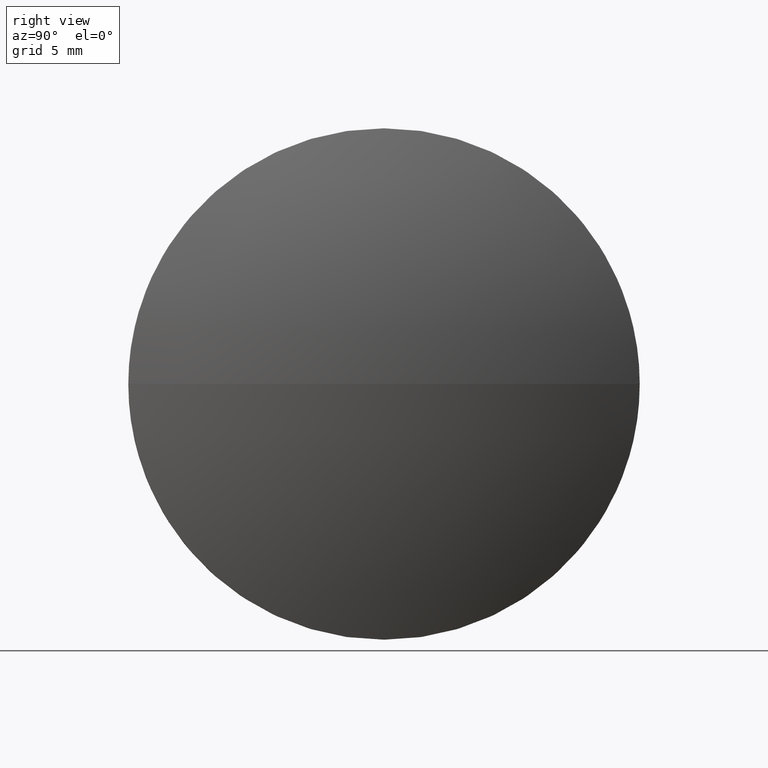
[diagram: clean part render]
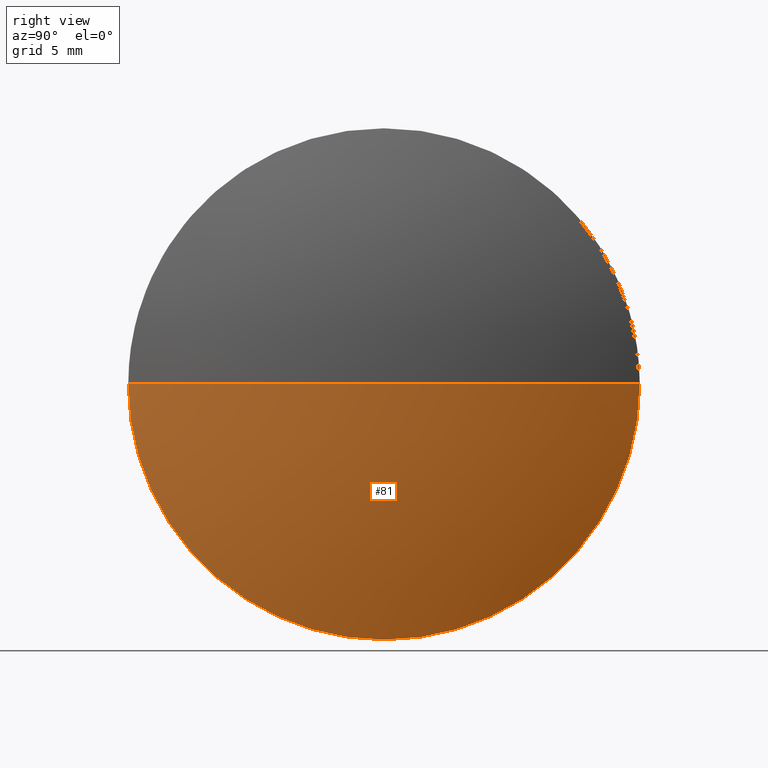
[diagram: same view with one face highlighted and labeled with its STEP entity id]
A machine part, right view. The second image highlights one B-rep face of the part: STEP entity #81.
In plain terms, the highlighted spherical surface has radius 34.506 mm.
Its self-contained STEP definition (entity closure, byte-faithful):
#8 = ORIENTED_EDGE ( 'NONE', *, *, #162, .F. ) ;
#9 = AXIS2_PLACEMENT_3D ( 'NONE', #106, #129, #49 ) ;
#17 = EDGE_CURVE ( 'NONE', #52, #82, #144, .T. ) ;
#21 = DIRECTION ( 'NONE',  ( -1.000000000000000000, -0.0000000000000000000, -0.0000000000000000000 ) ) ;
#22 = ORIENTED_EDGE ( 'NONE', *, *, #154, .T. ) ;
#24 = EDGE_LOOP ( 'NONE', ( #165, #22, #8, #109 ) ) ;
#27 = FACE_OUTER_BOUND ( 'NONE', #24, .T. ) ;
#32 = CARTESIAN_POINT ( 'NONE',  ( 118.7594658620225400, 52.53355492641217900, -1.555301434917140800E-015 ) ) ;
#48 = CARTESIAN_POINT ( 'NONE',  ( 118.7594658620225400, 65.23355492641219700, 0.0000000000000000000 ) ) ;
#49 = DIRECTION ( 'NONE',  ( 0.0000000000000000000, 1.000000000000000000, 1.224646799147353200E-016 ) ) ;
#52 = VERTEX_POINT ( 'NONE', #75 ) ;
#59 = DIRECTION ( 'NONE',  ( 0.0000000000000000000, 1.000000000000000000, 0.0000000000000000000 ) ) ;
#64 = DIRECTION ( 'NONE',  ( -0.0000000000000000000, 0.0000000000000000000, 1.000000000000000000 ) ) ;
#75 = CARTESIAN_POINT ( 'NONE',  ( 118.7594658620225400, 77.93355492641221400, 0.0000000000000000000 ) ) ;
#76 = DIRECTION ( 'NONE',  ( -1.000000000000000000, -0.0000000000000000000, -0.0000000000000000000 ) ) ;
#81 = ADVANCED_FACE ( 'NONE', ( #27 ), #139, .T. ) ;
#82 = VERTEX_POINT ( 'NONE', #89 ) ;
#84 = AXIS2_PLACEMENT_3D ( 'NONE', #171, #88, #59 ) ;
#88 = DIRECTION ( 'NONE',  ( -0.0000000000000000000, 0.0000000000000000000, -1.000000000000000000 ) ) ;
#89 = CARTESIAN_POINT ( 'NONE',  ( 118.7594658620225400, 65.23355492641219700, -12.70000000000001500 ) ) ;
#105 = CARTESIAN_POINT ( 'NONE',  ( 118.7594658620225400, 65.23355492641219700, 0.0000000000000000000 ) ) ;
#106 = CARTESIAN_POINT ( 'NONE',  ( 86.67560643083813000, 65.23355492641219700, 0.0000000000000000000 ) ) ;
#107 = CIRCLE ( 'NONE', #9, 34.50600000000000700 ) ;
#109 = ORIENTED_EDGE ( 'NONE', *, *, #17, .F. ) ;
#111 = CIRCLE ( 'NONE', #186, 34.50600000000000700 ) ;
#116 = CARTESIAN_POINT ( 'NONE',  ( 121.1816064308381400, 65.23355492641219700, 0.0000000000000000000 ) ) ;
#120 = VERTEX_POINT ( 'NONE', #116 ) ;
#125 = VERTEX_POINT ( 'NONE', #32 ) ;
#128 = EDGE_CURVE ( 'NONE', #120, #52, #111, .T. ) ;
#129 = DIRECTION ( 'NONE',  ( 0.0000000000000000000, 1.224646799147353200E-016, -1.000000000000000000 ) ) ;
#131 = DIRECTION ( 'NONE',  ( 0.0000000000000000000, 0.0000000000000000000, 1.000000000000000000 ) ) ;
#139 = SPHERICAL_SURFACE ( 'NONE', #84, 34.50600000000000700 ) ;
#142 = DIRECTION ( 'NONE',  ( 0.0000000000000000000, 0.0000000000000000000, 1.000000000000000000 ) ) ;
#144 = CIRCLE ( 'NONE', #177, 12.70000000000001700 ) ;
#146 = CIRCLE ( 'NONE', #151, 12.70000000000001700 ) ;
#147 = CARTESIAN_POINT ( 'NONE',  ( 86.67560643083813000, 65.23355492641219700, 0.0000000000000000000 ) ) ;
#151 = AXIS2_PLACEMENT_3D ( 'NONE', #105, #21, #131 ) ;
#154 = EDGE_CURVE ( 'NONE', #120, #125, #107, .T. ) ;
#162 = EDGE_CURVE ( 'NONE', #82, #125, #146, .T. ) ;
#165 = ORIENTED_EDGE ( 'NONE', *, *, #128, .F. ) ;
#166 = DIRECTION ( 'NONE',  ( 1.000000000000000000, 0.0000000000000000000, 0.0000000000000000000 ) ) ;
#171 = CARTESIAN_POINT ( 'NONE',  ( 86.67560643083813000, 65.23355492641219700, 0.0000000000000000000 ) ) ;
#177 = AXIS2_PLACEMENT_3D ( 'NONE', #48, #76, #142 ) ;
#186 = AXIS2_PLACEMENT_3D ( 'NONE', #147, #64, #166 ) ;